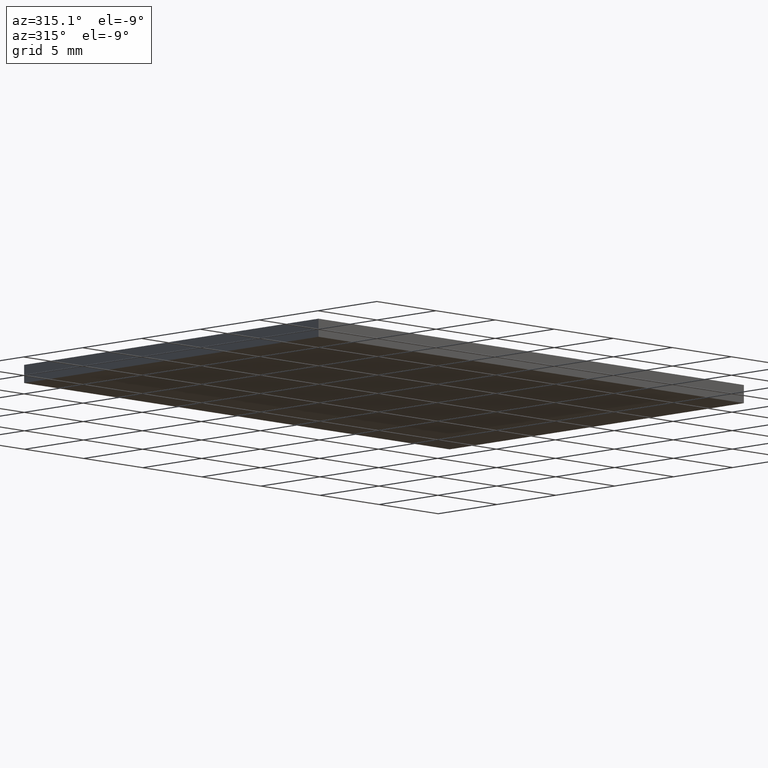
[diagram: clean part render]
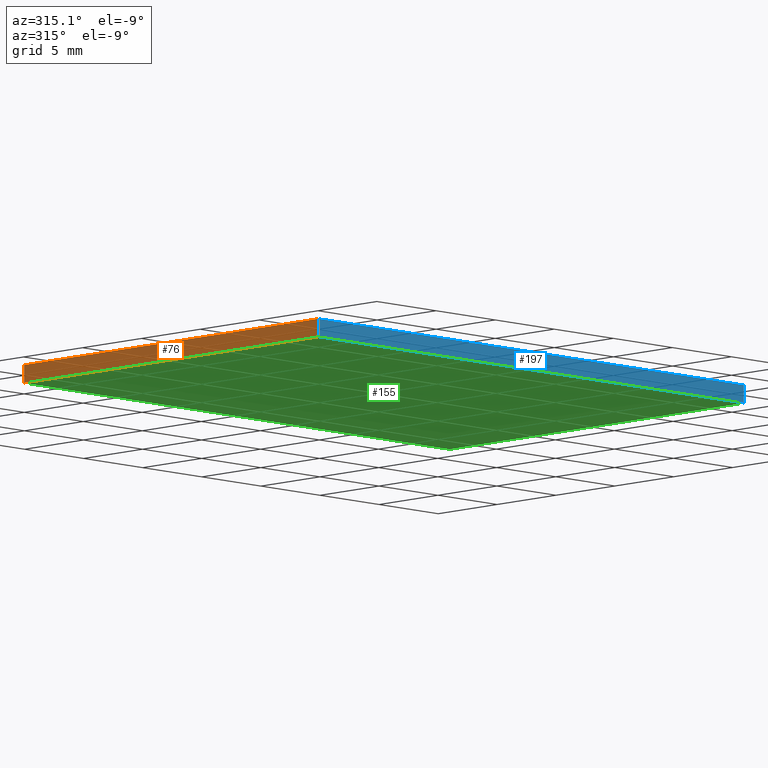
[diagram: same view with three faces highlighted in distinct colors, each labeled with its STEP entity id]
A machine part, auxiliary view with three faces highlighted in distinct colors.
Their STEP definitions:

[orange] entity #76 — the highlighted planar face has unit normal (1, 0, 0).
#1 = PLANE ( 'NONE',  #202 ) ;
#2 = VECTOR ( 'NONE', #53, 1000.000000000000000 ) ;
#6 = EDGE_CURVE ( 'NONE', #176, #66, #198, .T. ) ;
#9 = ORIENTED_EDGE ( 'NONE', *, *, #74, .F. ) ;
#11 = CARTESIAN_POINT ( 'NONE',  ( 0.000000000000000000, 0.000000000000000000, 0.000000000000000000 ) ) ;
#12 = DIRECTION ( 'NONE',  ( -0.000000000000000000, -1.000000000000000000, -0.000000000000000000 ) ) ;
#16 = CARTESIAN_POINT ( 'NONE',  ( 0.000000000000000000, 25.00000000000000000, 0.000000000000000000 ) ) ;
#27 = FACE_OUTER_BOUND ( 'NONE', #31, .T. ) ;
#31 = EDGE_LOOP ( 'NONE', ( #194, #9, #114, #39 ) ) ;
#32 = VECTOR ( 'NONE', #115, 1000.000000000000000 ) ;
#39 = ORIENTED_EDGE ( 'NONE', *, *, #46, .T. ) ;
#42 = VECTOR ( 'NONE', #12, 1000.000000000000000 ) ;
#46 = EDGE_CURVE ( 'NONE', #176, #99, #71, .T. ) ;
#53 = DIRECTION ( 'NONE',  ( -0.000000000000000000, -0.000000000000000000, -1.000000000000000000 ) ) ;
#56 = LINE ( 'NONE', #11, #42 ) ;
#62 = CARTESIAN_POINT ( 'NONE',  ( 0.000000000000000000, 0.000000000000000000, 1.100000000000000089 ) ) ;
#64 = EDGE_CURVE ( 'NONE', #99, #147, #56, .T. ) ;
#66 = VERTEX_POINT ( 'NONE', #134 ) ;
#71 = LINE ( 'NONE', #150, #2 ) ;
#74 = EDGE_CURVE ( 'NONE', #66, #147, #188, .T. ) ;
#76 = ADVANCED_FACE ( 'NONE', ( #27 ), #1, .F. ) ;
#79 = CARTESIAN_POINT ( 'NONE',  ( 0.000000000000000000, 0.000000000000000000, 1.100000000000000089 ) ) ;
#99 = VERTEX_POINT ( 'NONE', #16 ) ;
#107 = CARTESIAN_POINT ( 'NONE',  ( 0.000000000000000000, 0.000000000000000000, 1.100000000000000089 ) ) ;
#114 = ORIENTED_EDGE ( 'NONE', *, *, #6, .F. ) ;
#115 = DIRECTION ( 'NONE',  ( -0.000000000000000000, -1.000000000000000000, -0.000000000000000000 ) ) ;
#116 = DIRECTION ( 'NONE',  ( 0.000000000000000000, 0.000000000000000000, -1.000000000000000000 ) ) ;
#119 = DIRECTION ( 'NONE',  ( 1.000000000000000000, 0.000000000000000000, 0.000000000000000000 ) ) ;
#134 = CARTESIAN_POINT ( 'NONE',  ( 0.000000000000000000, 0.000000000000000000, 1.100000000000000089 ) ) ;
#139 = DIRECTION ( 'NONE',  ( -0.000000000000000000, -0.000000000000000000, -1.000000000000000000 ) ) ;
#141 = VECTOR ( 'NONE', #139, 1000.000000000000000 ) ;
#147 = VERTEX_POINT ( 'NONE', #173 ) ;
#150 = CARTESIAN_POINT ( 'NONE',  ( 0.000000000000000000, 25.00000000000000000, 1.100000000000000089 ) ) ;
#171 = CARTESIAN_POINT ( 'NONE',  ( 0.000000000000000000, 25.00000000000000000, 1.100000000000000089 ) ) ;
#173 = CARTESIAN_POINT ( 'NONE',  ( 0.000000000000000000, 0.000000000000000000, 0.000000000000000000 ) ) ;
#176 = VERTEX_POINT ( 'NONE', #171 ) ;
#188 = LINE ( 'NONE', #107, #141 ) ;
#194 = ORIENTED_EDGE ( 'NONE', *, *, #64, .T. ) ;
#198 = LINE ( 'NONE', #79, #32 ) ;
#202 = AXIS2_PLACEMENT_3D ( 'NONE', #62, #119, #116 ) ;

[blue] entity #197 — the highlighted planar face has unit normal (0, 1, 0).
#4 = ORIENTED_EDGE ( 'NONE', *, *, #102, .T. ) ;
#7 = CARTESIAN_POINT ( 'NONE',  ( 0.000000000000000000, 0.000000000000000000, 1.100000000000000089 ) ) ;
#17 = ORIENTED_EDGE ( 'NONE', *, *, #41, .F. ) ;
#19 = LINE ( 'NONE', #7, #61 ) ;
#23 = ORIENTED_EDGE ( 'NONE', *, *, #74, .T. ) ;
#33 = ORIENTED_EDGE ( 'NONE', *, *, #97, .F. ) ;
#37 = VERTEX_POINT ( 'NONE', #69 ) ;
#41 = EDGE_CURVE ( 'NONE', #66, #182, #19, .T. ) ;
#50 = LINE ( 'NONE', #144, #93 ) ;
#57 = DIRECTION ( 'NONE',  ( 0.000000000000000000, -0.000000000000000000, 1.000000000000000000 ) ) ;
#60 = AXIS2_PLACEMENT_3D ( 'NONE', #117, #157, #57 ) ;
#61 = VECTOR ( 'NONE', #196, 1000.000000000000000 ) ;
#66 = VERTEX_POINT ( 'NONE', #134 ) ;
#67 = LINE ( 'NONE', #126, #75 ) ;
#69 = CARTESIAN_POINT ( 'NONE',  ( 36.00000000000000000, 0.000000000000000000, 0.000000000000000000 ) ) ;
#74 = EDGE_CURVE ( 'NONE', #66, #147, #188, .T. ) ;
#75 = VECTOR ( 'NONE', #193, 1000.000000000000000 ) ;
#87 = PLANE ( 'NONE',  #60 ) ;
#92 = FACE_OUTER_BOUND ( 'NONE', #174, .T. ) ;
#93 = VECTOR ( 'NONE', #113, 1000.000000000000000 ) ;
#97 = EDGE_CURVE ( 'NONE', #182, #37, #67, .T. ) ;
#102 = EDGE_CURVE ( 'NONE', #147, #37, #50, .T. ) ;
#107 = CARTESIAN_POINT ( 'NONE',  ( 0.000000000000000000, 0.000000000000000000, 1.100000000000000089 ) ) ;
#113 = DIRECTION ( 'NONE',  ( 1.000000000000000000, 0.000000000000000000, 0.000000000000000000 ) ) ;
#117 = CARTESIAN_POINT ( 'NONE',  ( 0.000000000000000000, 0.000000000000000000, 1.100000000000000089 ) ) ;
#126 = CARTESIAN_POINT ( 'NONE',  ( 36.00000000000000000, 0.000000000000000000, 1.100000000000000089 ) ) ;
#134 = CARTESIAN_POINT ( 'NONE',  ( 0.000000000000000000, 0.000000000000000000, 1.100000000000000089 ) ) ;
#135 = CARTESIAN_POINT ( 'NONE',  ( 36.00000000000000000, 0.000000000000000000, 1.100000000000000089 ) ) ;
#139 = DIRECTION ( 'NONE',  ( -0.000000000000000000, -0.000000000000000000, -1.000000000000000000 ) ) ;
#141 = VECTOR ( 'NONE', #139, 1000.000000000000000 ) ;
#144 = CARTESIAN_POINT ( 'NONE',  ( 0.000000000000000000, 0.000000000000000000, 0.000000000000000000 ) ) ;
#147 = VERTEX_POINT ( 'NONE', #173 ) ;
#157 = DIRECTION ( 'NONE',  ( 0.000000000000000000, 1.000000000000000000, 0.000000000000000000 ) ) ;
#173 = CARTESIAN_POINT ( 'NONE',  ( 0.000000000000000000, 0.000000000000000000, 0.000000000000000000 ) ) ;
#174 = EDGE_LOOP ( 'NONE', ( #4, #33, #17, #23 ) ) ;
#182 = VERTEX_POINT ( 'NONE', #135 ) ;
#188 = LINE ( 'NONE', #107, #141 ) ;
#193 = DIRECTION ( 'NONE',  ( -0.000000000000000000, -0.000000000000000000, -1.000000000000000000 ) ) ;
#196 = DIRECTION ( 'NONE',  ( 1.000000000000000000, 0.000000000000000000, 0.000000000000000000 ) ) ;
#197 = ADVANCED_FACE ( 'NONE', ( #92 ), #87, .F. ) ;

[green] entity #155 — the highlighted planar face has unit normal (0, 0, -1).
#5 = LINE ( 'NONE', #83, #161 ) ;
#10 = CARTESIAN_POINT ( 'NONE',  ( 0.000000000000000000, 0.000000000000000000, 0.000000000000000000 ) ) ;
#11 = CARTESIAN_POINT ( 'NONE',  ( 0.000000000000000000, 0.000000000000000000, 0.000000000000000000 ) ) ;
#12 = DIRECTION ( 'NONE',  ( -0.000000000000000000, -1.000000000000000000, -0.000000000000000000 ) ) ;
#16 = CARTESIAN_POINT ( 'NONE',  ( 0.000000000000000000, 25.00000000000000000, 0.000000000000000000 ) ) ;
#24 = DIRECTION ( 'NONE',  ( -1.000000000000000000, -0.000000000000000000, -0.000000000000000000 ) ) ;
#25 = DIRECTION ( 'NONE',  ( 0.000000000000000000, 0.000000000000000000, -1.000000000000000000 ) ) ;
#26 = CARTESIAN_POINT ( 'NONE',  ( 36.00000000000000000, 25.00000000000000000, 0.000000000000000000 ) ) ;
#28 = EDGE_CURVE ( 'NONE', #37, #129, #80, .T. ) ;
#36 = EDGE_CURVE ( 'NONE', #129, #99, #5, .T. ) ;
#37 = VERTEX_POINT ( 'NONE', #69 ) ;
#40 = CARTESIAN_POINT ( 'NONE',  ( 36.00000000000000000, 0.000000000000000000, 0.000000000000000000 ) ) ;
#42 = VECTOR ( 'NONE', #12, 1000.000000000000000 ) ;
#50 = LINE ( 'NONE', #144, #93 ) ;
#54 = ORIENTED_EDGE ( 'NONE', *, *, #28, .F. ) ;
#56 = LINE ( 'NONE', #11, #42 ) ;
#63 = VECTOR ( 'NONE', #151, 1000.000000000000000 ) ;
#64 = EDGE_CURVE ( 'NONE', #99, #147, #56, .T. ) ;
#69 = CARTESIAN_POINT ( 'NONE',  ( 36.00000000000000000, 0.000000000000000000, 0.000000000000000000 ) ) ;
#80 = LINE ( 'NONE', #40, #63 ) ;
#83 = CARTESIAN_POINT ( 'NONE',  ( 0.000000000000000000, 25.00000000000000000, 0.000000000000000000 ) ) ;
#93 = VECTOR ( 'NONE', #113, 1000.000000000000000 ) ;
#99 = VERTEX_POINT ( 'NONE', #16 ) ;
#102 = EDGE_CURVE ( 'NONE', #147, #37, #50, .T. ) ;
#113 = DIRECTION ( 'NONE',  ( 1.000000000000000000, 0.000000000000000000, 0.000000000000000000 ) ) ;
#129 = VERTEX_POINT ( 'NONE', #26 ) ;
#130 = ORIENTED_EDGE ( 'NONE', *, *, #102, .F. ) ;
#144 = CARTESIAN_POINT ( 'NONE',  ( 0.000000000000000000, 0.000000000000000000, 0.000000000000000000 ) ) ;
#145 = EDGE_LOOP ( 'NONE', ( #180, #165, #54, #130 ) ) ;
#147 = VERTEX_POINT ( 'NONE', #173 ) ;
#151 = DIRECTION ( 'NONE',  ( 0.000000000000000000, 1.000000000000000000, 0.000000000000000000 ) ) ;
#154 = FACE_OUTER_BOUND ( 'NONE', #145, .T. ) ;
#155 = ADVANCED_FACE ( 'NONE', ( #154 ), #201, .T. ) ;
#161 = VECTOR ( 'NONE', #24, 1000.000000000000000 ) ;
#165 = ORIENTED_EDGE ( 'NONE', *, *, #36, .F. ) ;
#173 = CARTESIAN_POINT ( 'NONE',  ( 0.000000000000000000, 0.000000000000000000, 0.000000000000000000 ) ) ;
#180 = ORIENTED_EDGE ( 'NONE', *, *, #64, .F. ) ;
#186 = DIRECTION ( 'NONE',  ( -1.000000000000000000, 0.000000000000000000, -0.000000000000000000 ) ) ;
#199 = AXIS2_PLACEMENT_3D ( 'NONE', #10, #25, #186 ) ;
#201 = PLANE ( 'NONE',  #199 ) ;